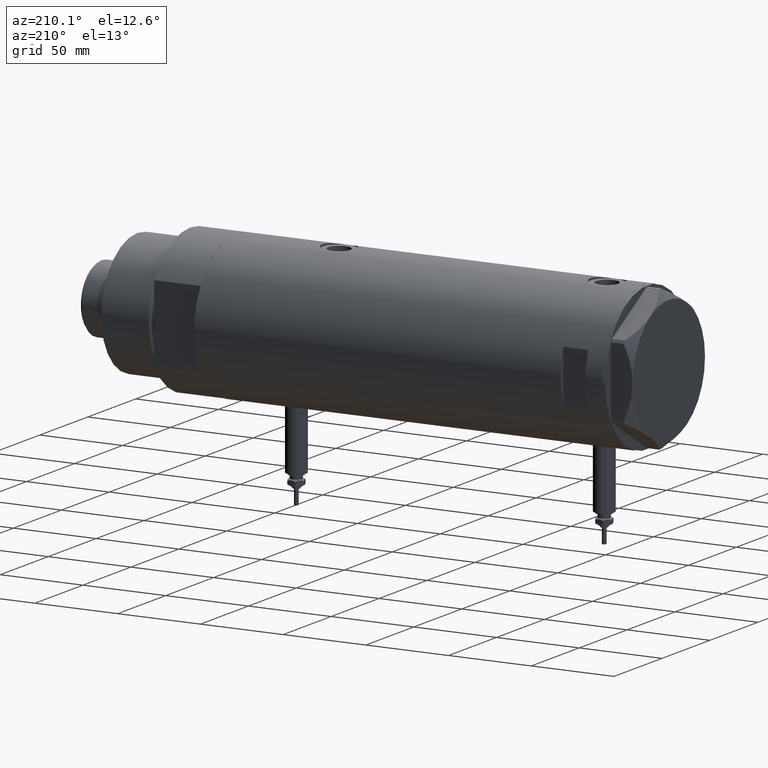
[diagram: clean part render]
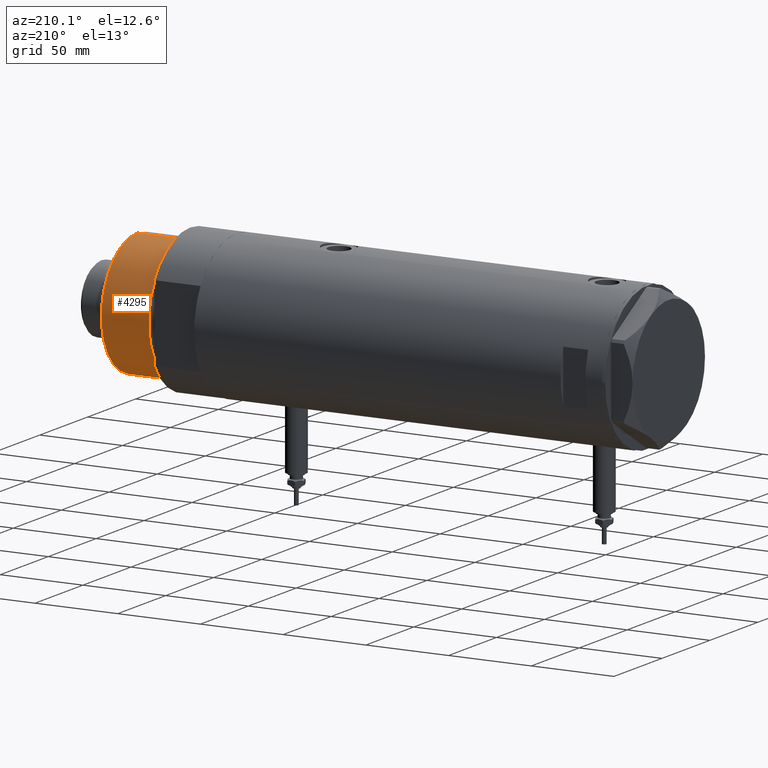
[diagram: same view with one face highlighted and labeled with its STEP entity id]
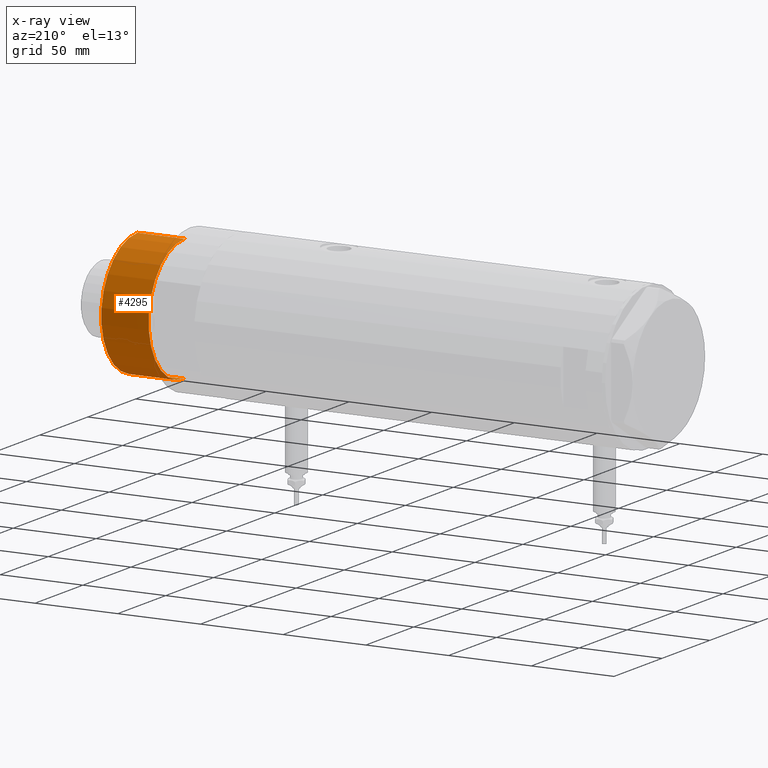
[diagram: x-ray of the same camera — body ghosted, the highlighted face saturated]
A machine part, auxiliary view. The second image highlights one B-rep face of the part: STEP entity #4295.
The next image is the same camera in x-ray: the body ghosted, the highlighted face saturated — about 0% of this face is hidden behind the body in this view.
In plain terms, the highlighted cylindrical surface (partial cylindrical patch) has radius 37.5 mm, axis along (-1, -0, 0).
Its self-contained STEP definition (entity closure, byte-faithful):
#9 = CARTESIAN_POINT ( 'NONE',  ( -37.50000000000000711, 0.000000000000000000, 59.89999999999999147 ) ) ;
#436 = VERTEX_POINT ( 'NONE', #5770 ) ;
#643 = FACE_OUTER_BOUND ( 'NONE', #4859, .T. ) ;
#648 = VERTEX_POINT ( 'NONE', #1072 ) ;
#879 = CARTESIAN_POINT ( 'NONE',  ( 37.50000000000000711, 4.592425496802575156E-15, 59.89999999999999147 ) ) ;
#913 = CIRCLE ( 'NONE', #4491, 37.50000000000000711 ) ;
#947 = ORIENTED_EDGE ( 'NONE', *, *, #3313, .T. ) ;
#969 = VECTOR ( 'NONE', #5597, 1000.000000000000000 ) ;
#1072 = CARTESIAN_POINT ( 'NONE',  ( -37.50000000000000711, 0.000000000000000000, 31.27384048104054415 ) ) ;
#1419 = VERTEX_POINT ( 'NONE', #5869 ) ;
#1580 = DIRECTION ( 'NONE',  ( -0.000000000000000000, -0.000000000000000000, -1.000000000000000000 ) ) ;
#1646 = EDGE_CURVE ( 'NONE', #436, #648, #3738, .T. ) ;
#1843 = VERTEX_POINT ( 'NONE', #3355 ) ;
#2504 = CYLINDRICAL_SURFACE ( 'NONE', #3406, 37.50000000000000711 ) ;
#2549 = CARTESIAN_POINT ( 'NONE',  ( 0.000000000000000000, 0.000000000000000000, 59.89999999999999147 ) ) ;
#3047 = DIRECTION ( 'NONE',  ( 1.000000000000000000, 0.000000000000000000, 0.000000000000000000 ) ) ;
#3313 = EDGE_CURVE ( 'NONE', #1843, #1419, #5042, .T. ) ;
#3355 = CARTESIAN_POINT ( 'NONE',  ( 37.50000000000000711, 4.592425496802575156E-15, 59.89999999999999147 ) ) ;
#3406 = AXIS2_PLACEMENT_3D ( 'NONE', #4344, #1580, #5152 ) ;
#3616 = ORIENTED_EDGE ( 'NONE', *, *, #1646, .F. ) ;
#3738 = LINE ( 'NONE', #9, #969 ) ;
#3887 = CIRCLE ( 'NONE', #4486, 37.50000000000000711 ) ;
#4190 = ORIENTED_EDGE ( 'NONE', *, *, #4850, .F. ) ;
#4295 = ADVANCED_FACE ( 'NONE', ( #643 ), #2504, .T. ) ;
#4344 = CARTESIAN_POINT ( 'NONE',  ( 0.000000000000000000, 0.000000000000000000, 59.89999999999999147 ) ) ;
#4368 = CARTESIAN_POINT ( 'NONE',  ( 0.000000000000000000, 0.000000000000000000, 31.27384048104054415 ) ) ;
#4486 = AXIS2_PLACEMENT_3D ( 'NONE', #4368, #5417, #3047 ) ;
#4491 = AXIS2_PLACEMENT_3D ( 'NONE', #2549, #5698, #5784 ) ;
#4848 = VECTOR ( 'NONE', #5474, 1000.000000000000000 ) ;
#4850 = EDGE_CURVE ( 'NONE', #1843, #436, #913, .T. ) ;
#4859 = EDGE_LOOP ( 'NONE', ( #4190, #947, #5373, #3616 ) ) ;
#5042 = LINE ( 'NONE', #879, #4848 ) ;
#5152 = DIRECTION ( 'NONE',  ( -1.000000000000000000, 0.000000000000000000, 0.000000000000000000 ) ) ;
#5373 = ORIENTED_EDGE ( 'NONE', *, *, #5826, .T. ) ;
#5417 = DIRECTION ( 'NONE',  ( -0.000000000000000000, -0.000000000000000000, 1.000000000000000000 ) ) ;
#5474 = DIRECTION ( 'NONE',  ( -0.000000000000000000, -0.000000000000000000, -1.000000000000000000 ) ) ;
#5597 = DIRECTION ( 'NONE',  ( -0.000000000000000000, -0.000000000000000000, -1.000000000000000000 ) ) ;
#5698 = DIRECTION ( 'NONE',  ( 0.000000000000000000, 0.000000000000000000, 1.000000000000000000 ) ) ;
#5770 = CARTESIAN_POINT ( 'NONE',  ( -37.50000000000000711, 0.000000000000000000, 59.89999999999999147 ) ) ;
#5784 = DIRECTION ( 'NONE',  ( 1.000000000000000000, 0.000000000000000000, 0.000000000000000000 ) ) ;
#5826 = EDGE_CURVE ( 'NONE', #1419, #648, #3887, .T. ) ;
#5869 = CARTESIAN_POINT ( 'NONE',  ( 37.50000000000000711, 4.592425496802575156E-15, 31.27384048104054415 ) ) ;